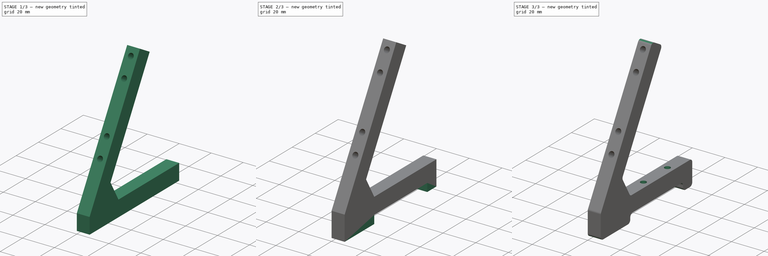
[diagram: build sequence overview — one tinted view per stage of 3, left to right]
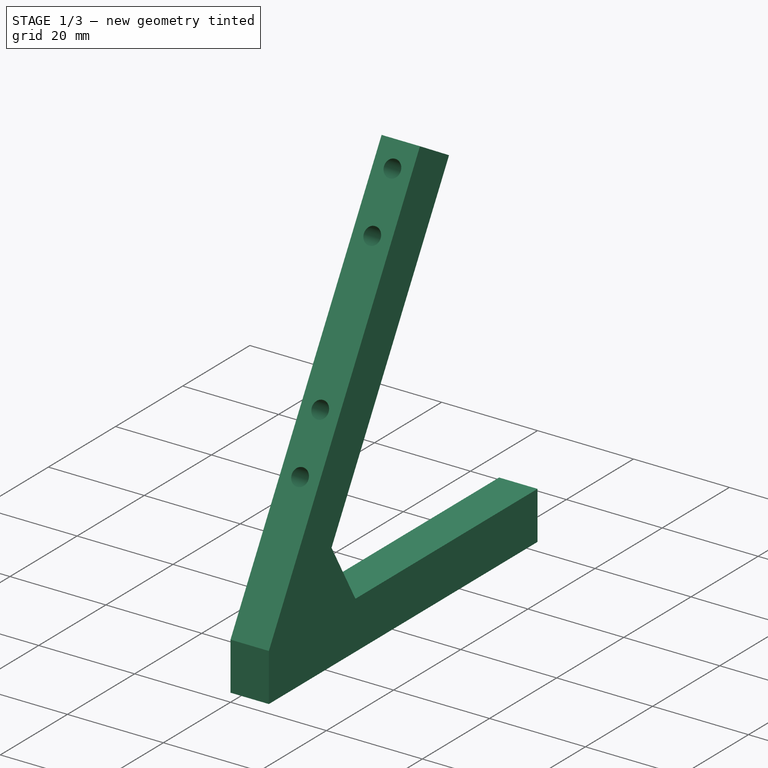
[diagram: stage 1 of 3 — iso view after this stage's code; geometry added in this stage tinted green]
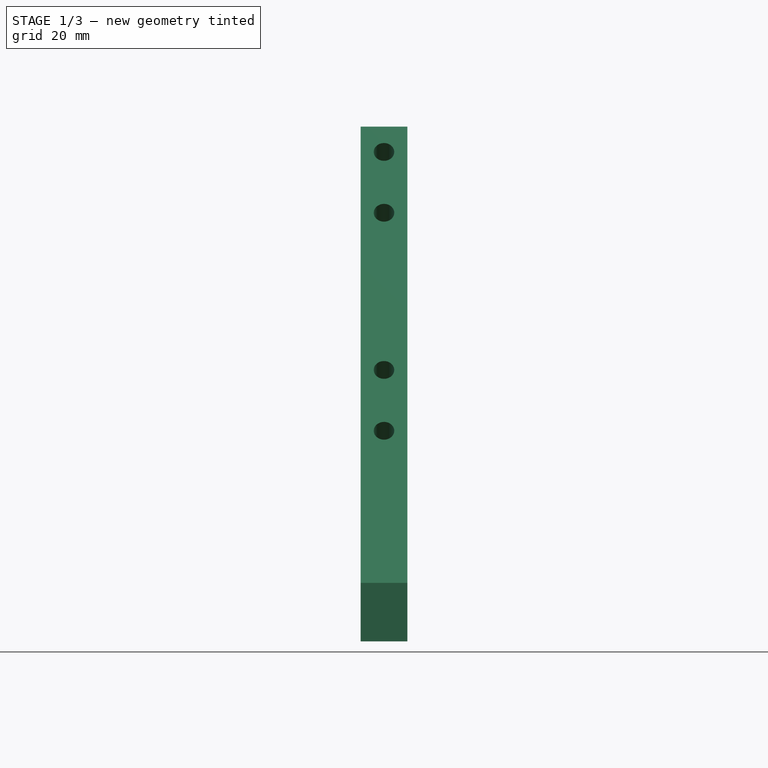
[diagram: stage 1 of 3 — front view after this stage's code; geometry added in this stage tinted green]
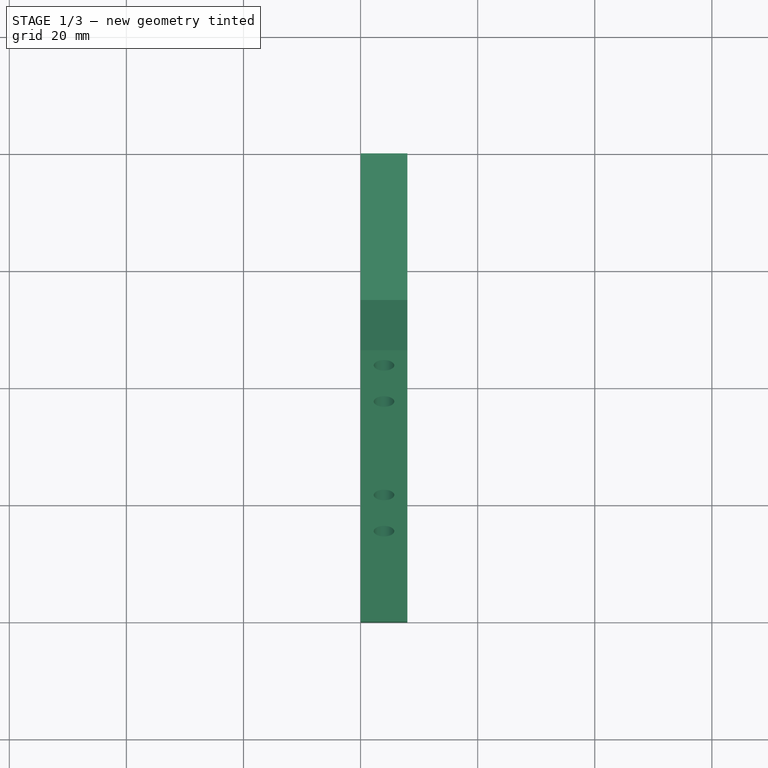
[diagram: stage 1 of 3 — top view after this stage's code; geometry added in this stage tinted green]
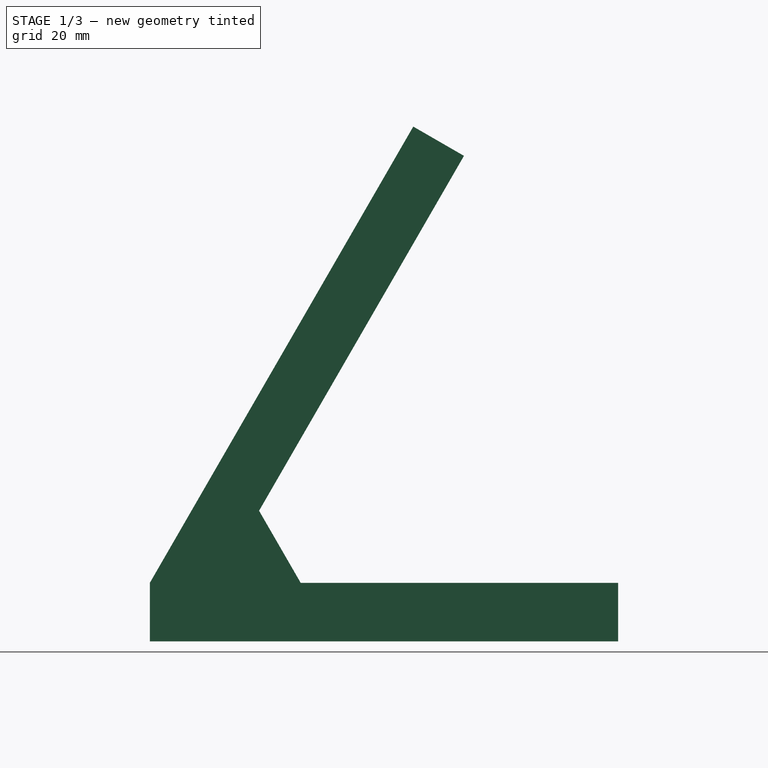
[diagram: stage 1 of 3 — right view after this stage's code; geometry added in this stage tinted green]
FCSTD DOCUMENT  (FreeCAD 1.0R39109 (Git))
Label: LEG_I2C-CLCD_NODEMCU
License: All rights reserved
LicenseURL: https://en.wikipedia.org/wiki/All_rights_reserved
objects: Sketcher::SketchObject×4, PartDesign::Pad×2, PartDesign::Pocket×2, PartDesign::Fillet×1, PartDesign::Body×1
note: 24 computed .brp shape members not serialized (recipe doc carries the construction recipe); baked Part::Feature solids carry a one-line shape summary decoded from their .brp

FEATURE [Sketcher::SketchObject] Sketch  label="sketch_leg_body"
  ArcFitTolerance = 1e-06
  AttachmentSupport = -> [YZ_Plane]
  FullyConstrained = true
  MakeInternals = false
  MapMode = 5
  Placement = pos=(0,0,0) rot=(0.57735,0.57735,0.57735;2.0944rad)
  sketch-geometry (9):
    g0: LineSegment StartX=0 StartY=0 StartZ=0 EndX=80 EndY=0 EndZ=0
    g1: LineSegment StartX=0 StartY=0 StartZ=0 EndX=0 EndY=10 EndZ=0
    g2: LineSegment StartX=0 StartY=10 StartZ=0 EndX=45 EndY=87.9423 EndZ=0
    g3: LineSegment StartX=80 StartY=0 StartZ=0 EndX=80 EndY=10 EndZ=0
    g4: LineSegment StartX=45 StartY=87.9423 StartZ=0 EndX=53.6602 EndY=82.9423 EndZ=0
    g5: LineSegment [constr] StartX=0 StartY=10 StartZ=0 EndX=80 EndY=10 EndZ=0
    g6: LineSegment StartX=53.6602 StartY=82.9423 StartZ=0 EndX=18.6602 EndY=22.3205 EndZ=0
    g7: LineSegment StartX=18.6602 StartY=22.3205 StartZ=0 EndX=25.7735 EndY=10 EndZ=0
    g8: LineSegment StartX=25.7735 StartY=10 StartZ=0 EndX=80 EndY=10 EndZ=0
  constraints (27):
    c: Distance(g0) = 80
    c: Coincident(g0,g-1)
    c: PointOnObject(g0,g-1)
    c: Distance(g1) = 10
    c: Coincident(g1,g0)
    c: PointOnObject(g1,g-2)
    c: Angle(g-1,g2) = 1.0472
    c: Distance(g3) = 10
    c: Coincident(g3,g0)
    c: Vertical(g3)
    c: Coincident(g2,g1)
    c: Distance(g2,g2) = 90
    c: Coincident(g4,g2)
    c: Angle(g2,g4) = 1.5708
    c: Distance(g4,g4) = 10
    c: Coincident(g5,g1)
    c: Coincident(g5,g3)
    c: Coincident(g6,g4)
    c: Angle(g4,g6) = 1.5708
    c: Distance(g6,g6) = 70
    c: Coincident(g7,g6)
    c: PointOnObject(g7,g5)
    c: Angle(g7,g5) = 1.0472
    c: Coincident(g8,g7)
    c: Coincident(g8,g3)
    c: DistanceX(g8,g8) = 54.2265
    c: Distance(g7,g1) = 25.7735
FEATURE [PartDesign::Pad] Pad  label="leg_body"
  Direction = (1,0,0)
  Length = 8
  Length2 = 10
  Placement = pos=(0,0,0) rot=(1,1,1;2.0944rad)
  Profile = -> Sketch
  ReferenceAxis = -> Sketch [N_Axis]
  Refine = true
  Suppressed = false
  Type = 0
FEATURE [Sketcher::SketchObject] Sketch001  label="sketch_hole_clcd"
  ArcFitTolerance = 1e-06
  AttachmentSupport = -> [Pad]
  FullyConstrained = true
  MakeInternals = false
  MapMode = 5
  Placement = pos=(-1.2e-15,-4.33012,2.5) rot=(0.447214,0.447214,-0.774597;1.82348rad)
  sketch-geometry (11):
    g0: LineSegment [constr] StartX=-8.66 StartY=8 StartZ=0 EndX=-98.66 EndY=8 EndZ=0
    g1: LineSegment [constr] StartX=-98.66 StartY=8 StartZ=0 EndX=-98.66 EndY=0 EndZ=0
    g2: LineSegment [constr] StartX=-98.66 StartY=0 StartZ=0 EndX=-8.66 EndY=0 EndZ=0
    g3: LineSegment [constr] StartX=-8.66 StartY=0 StartZ=0 EndX=-8.66 EndY=8 EndZ=0
    g4: LineSegment [constr] StartX=-93.66 StartY=8 StartZ=0 EndX=-93.66 EndY=0 EndZ=0
    g5: LineSegment [constr] StartX=-98.66 StartY=4 StartZ=0 EndX=-93.66 EndY=4 EndZ=0
    g6: LineSegment [constr] StartX=-93.66 StartY=4 StartZ=0 EndX=-38.66 EndY=4 EndZ=0
    g7: Circle CenterX=-93.66 CenterY=4 CenterZ=0 NormalX=0 NormalY=0 NormalZ=1 AngleXU=0 Radius=1.75
    g8: Circle CenterX=-38.66 CenterY=4 CenterZ=0 NormalX=0 NormalY=0 NormalZ=1 AngleXU=0 Radius=1.75
    g9: Circle CenterX=-81.66 CenterY=4 CenterZ=0 NormalX=0 NormalY=0 NormalZ=1 AngleXU=0 Radius=1.75
    g10: Circle CenterX=-50.66 CenterY=4 CenterZ=0 NormalX=0 NormalY=0 NormalZ=1 AngleXU=0 Radius=1.75
  constraints (32):
    c: Coincident(g0,g1)
    c: Coincident(g1,g2)
    c: Coincident(g2,g3)
    c: Coincident(g3,g0)
    c: Horizontal(g0)
    c: Horizontal(g2)
    c: Vertical(g1)
    c: Vertical(g3)
    c: Distance(g1,g3) = 90
    c: Distance(g0,g2) = 8
    c: PointOnObject(g1,g-1)
    c: DistanceX(g2,g-1) = 8.66
    c: Distance(g4) = 8
    c: Vertical(g4)
    c: PointOnObject(g4,g0)
    c: Distance(g4,g1) = 5
    c: Symmetric(g1,g1,g5)
    c: PointOnObject(g5,g4)
    c: Horizontal(g5)
    c: Distance(g6) = 55
    c: Coincident(g6,g5)
    c: Horizontal(g6)
    c: Diameter(g7) = 3.5
    c: Coincident(g7,g5)
    c: Diameter(g8) = 3.5
    c: Coincident(g8,g6)
    c: Diameter(g9) = 3.5
    c: PointOnObject(g9,g6)
    c: Diameter(g10) = 3.5
    c: PointOnObject(g10,g6)
    c: DistanceX(g9,g10) = 31
    c: DistanceX(g5,g9) = 12
FEATURE [PartDesign::Pocket] Pocket  label="hole_clcd"
  BaseFeature = -> Pad
  Direction = (0,0.866026,-0.5)
  Length = 10
  Length2 = 5
  Placement = pos=(0,0,0) rot=(1,1,1;2.0944rad)
  Profile = -> Sketch001
  ReferenceAxis = -> Sketch001 [N_Axis]
  Refine = true
  Suppressed = false
  Type = 0
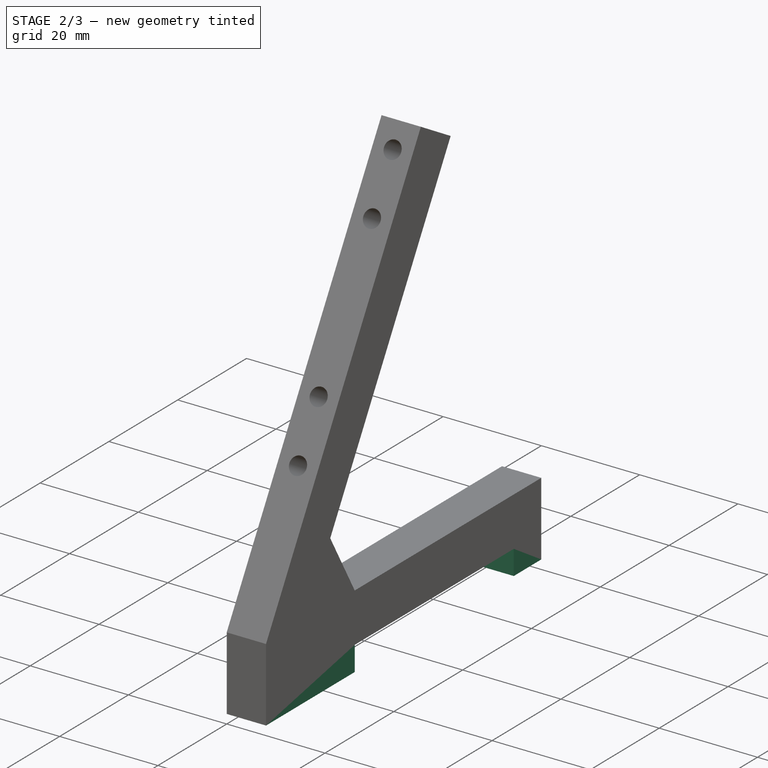
[diagram: stage 2 of 3 — iso view after this stage's code; geometry added in this stage tinted green]
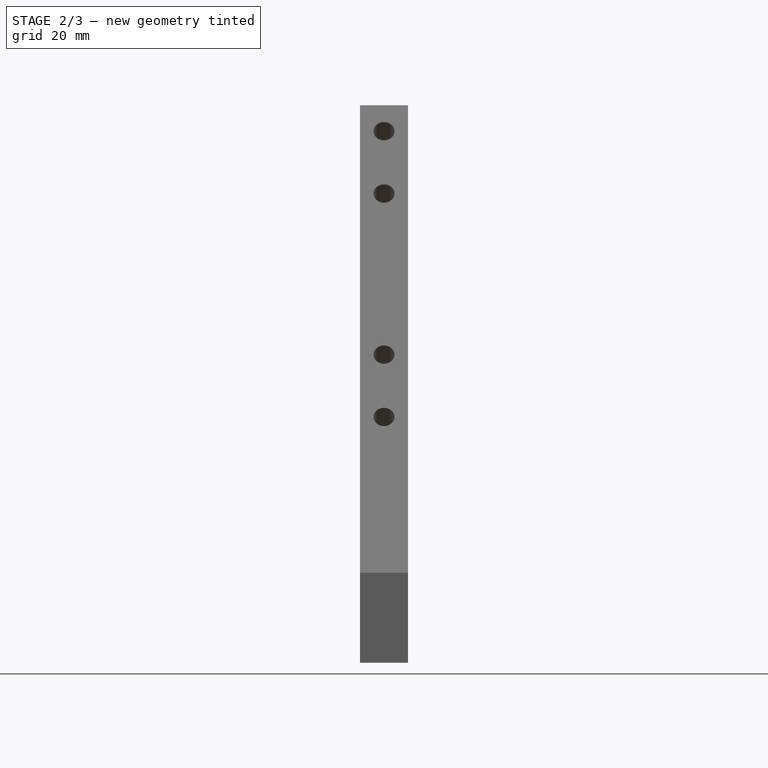
[diagram: stage 2 of 3 — front view after this stage's code; geometry added in this stage tinted green]
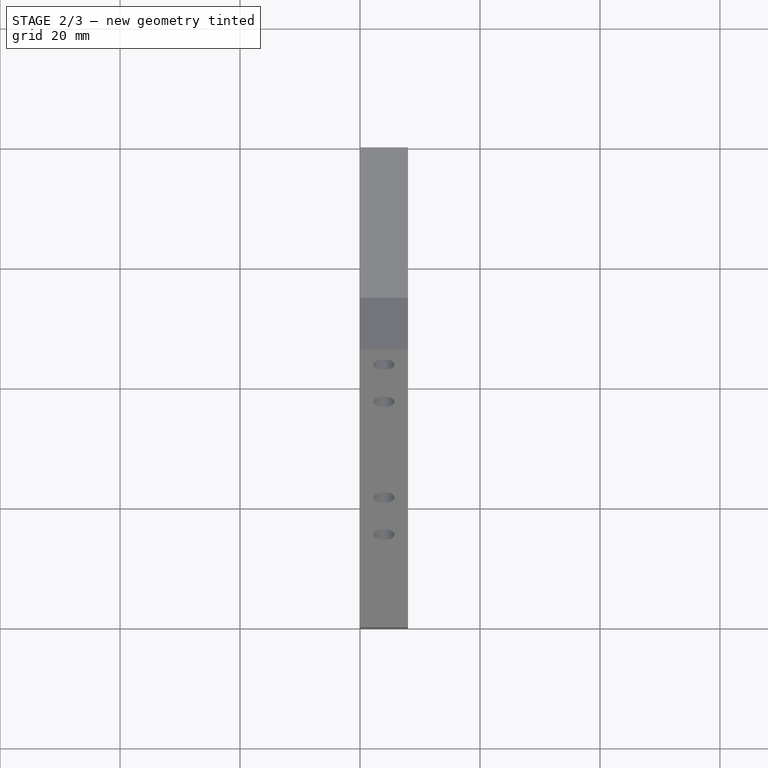
[diagram: stage 2 of 3 — top view after this stage's code; geometry added in this stage tinted green]
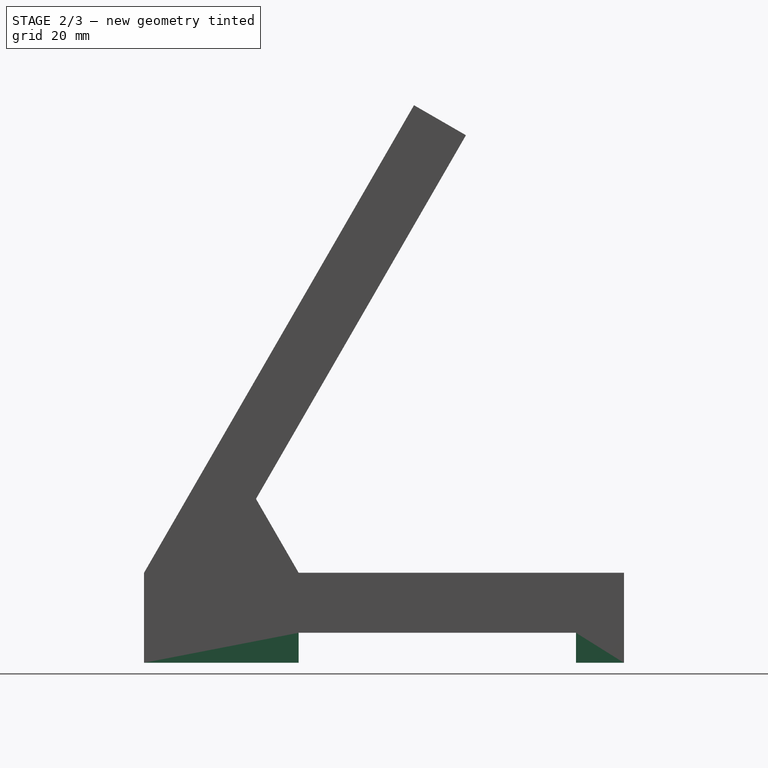
[diagram: stage 2 of 3 — right view after this stage's code; geometry added in this stage tinted green]
FEATURE [Sketcher::SketchObject] Sketch002  label="sketch_foot"
  ArcFitTolerance = 1e-06
  AttachmentSupport = -> [Pocket]
  FullyConstrained = true
  MakeInternals = false
  MapMode = 5
  Placement = pos=(0,0,0) rot=(0.707107,0.707107,0;3.14159rad)
  sketch-geometry (9):
    g0: LineSegment StartX=0 StartY=0 StartZ=0 EndX=25.7735 EndY=0 EndZ=0
    g1: LineSegment StartX=25.7735 StartY=0 StartZ=0 EndX=25.7735 EndY=8 EndZ=0
    g2: LineSegment StartX=25.7735 StartY=8 StartZ=0 EndX=0 EndY=8 EndZ=0
    g3: LineSegment StartX=0 StartY=8 StartZ=0 EndX=0 EndY=0 EndZ=0
    g4: LineSegment StartX=80 StartY=8 StartZ=0 EndX=72 EndY=8 EndZ=0
    g5: LineSegment StartX=72 StartY=8 StartZ=0 EndX=72 EndY=0 EndZ=0
    g6: LineSegment StartX=72 StartY=0 StartZ=0 EndX=80 EndY=0 EndZ=0
    g7: LineSegment StartX=80 StartY=0 StartZ=0 EndX=80 EndY=8 EndZ=0
    g8: LineSegment [constr] StartX=0 StartY=0 StartZ=0 EndX=80 EndY=0 EndZ=0
  constraints (25):
    c: Coincident(g0,g1)
    c: Coincident(g1,g2)
    c: Coincident(g2,g3)
    c: Coincident(g3,g0)
    c: Horizontal(g0)
    c: Horizontal(g2)
    c: Vertical(g1)
    c: Vertical(g3)
    c: Distance(g1,g3) = 25.7735
    c: Distance(g0,g2) = 8
    c: Coincident(g0,g-1)
    c: Coincident(g4,g5)
    c: Coincident(g5,g6)
    c: Coincident(g6,g7)
    c: Coincident(g7,g4)
    c: Horizontal(g4)
    c: Horizontal(g6)
    c: Vertical(g5)
    c: Vertical(g7)
    c: Distance(g5,g7) = 8
    c: Distance(g4,g6) = 8
    c: Distance(g8) = 80
    c: Coincident(g8,g0)
    c: PointOnObject(g8,g-1)
    c: Coincident(g6,g8)
FEATURE [PartDesign::Pad] Pad001  label="foot_body"
  BaseFeature = -> Pocket
  Direction = (0,0,-1)
  Length = 5
  Length2 = 10
  Placement = pos=(0,0,0) rot=(1,1,1;2.0944rad)
  Profile = -> Sketch002
  ReferenceAxis = -> Sketch002 [N_Axis]
  Refine = true
  Suppressed = false
  Type = 0
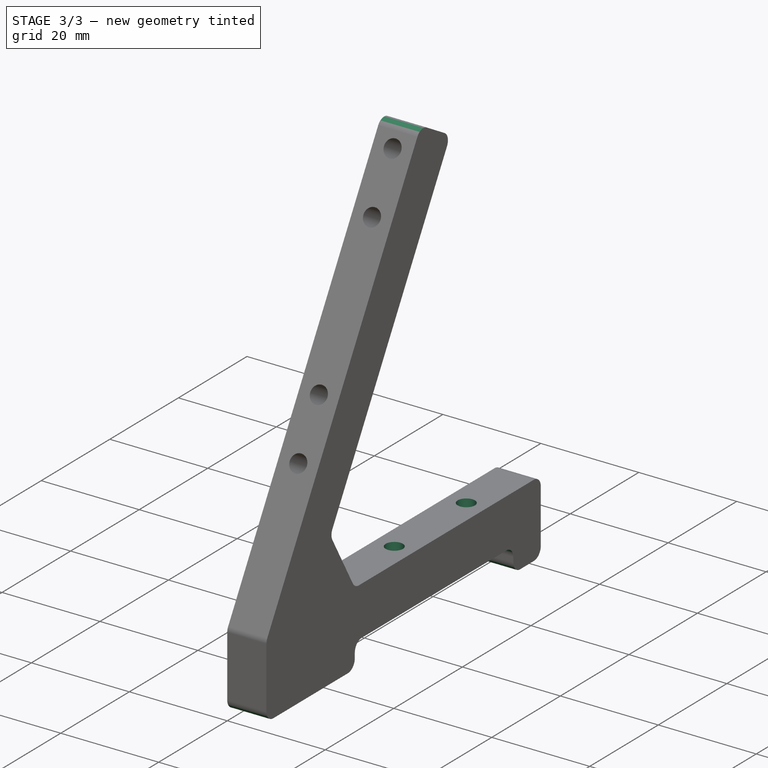
[diagram: stage 3 of 3 — iso view after this stage's code; geometry added in this stage tinted green]
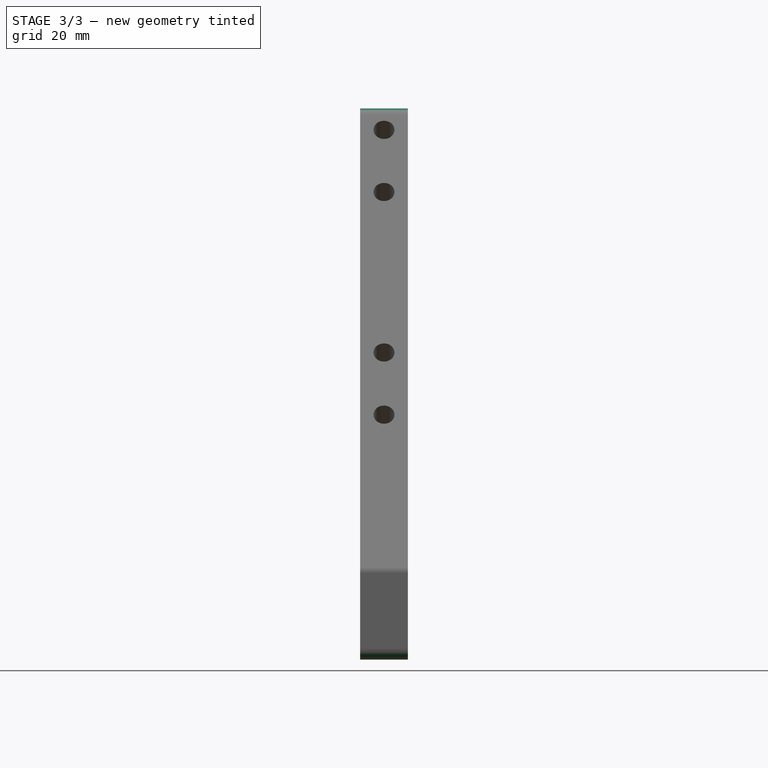
[diagram: stage 3 of 3 — front view after this stage's code; geometry added in this stage tinted green]
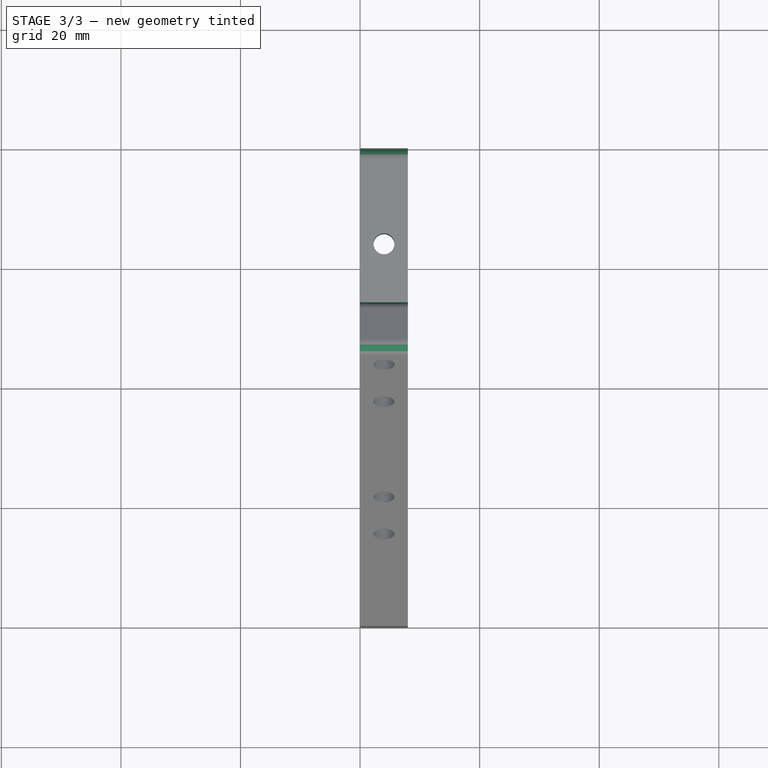
[diagram: stage 3 of 3 — top view after this stage's code; geometry added in this stage tinted green]
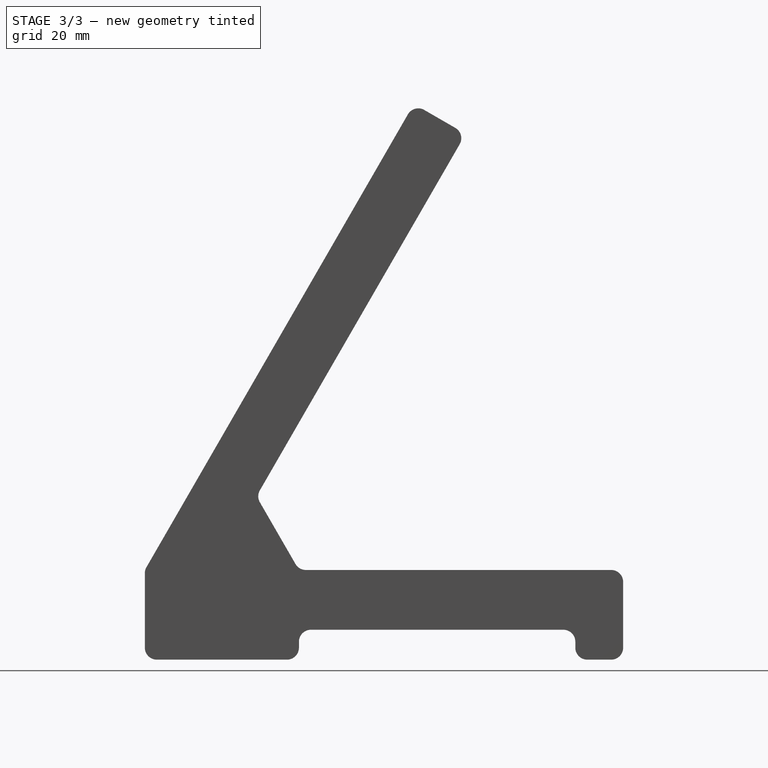
[diagram: stage 3 of 3 — right view after this stage's code; geometry added in this stage tinted green]
FEATURE [Sketcher::SketchObject] Sketch003  label="Sketch_hole_nodemcu"
  ArcFitTolerance = 1e-06
  AttachmentSupport = -> [Pad001]
  FullyConstrained = true
  MakeInternals = false
  MapMode = 5
  Placement = pos=(0,0,0) rot=(0.707107,0.707107,0;3.14159rad)
  sketch-geometry (4):
    g0: LineSegment [constr] StartX=64 StartY=0 StartZ=0 EndX=64 EndY=8 EndZ=0
    g1: LineSegment [constr] StartX=64 StartY=4 StartZ=0 EndX=0 EndY=4 EndZ=0
    g2: Circle CenterX=64 CenterY=4 CenterZ=0 NormalX=0 NormalY=0 NormalZ=1 AngleXU=0 Radius=1.75
    g3: Circle CenterX=43 CenterY=4 CenterZ=0 NormalX=0 NormalY=0 NormalZ=1 AngleXU=0 Radius=1.75
  constraints (12):
    c: Distance(g0) = 8
    c: Vertical(g0)
    c: PointOnObject(g0,g-1)
    c: DistanceX(g-1,g0) = 64
    c: Symmetric(g0,g0,g1)
    c: PointOnObject(g1,g-2)
    c: Horizontal(g1)
    c: Diameter(g2) = 3.5
    c: Coincident(g2,g1)
    c: Diameter(g3) = 3.5
    c: PointOnObject(g3,g1)
    c: DistanceX(g3,g1) = 21
FEATURE [PartDesign::Pocket] Pocket001  label="hole_nodemcu"
  BaseFeature = -> Pad001
  Direction = (0,0,1)
  Length = 10
  Length2 = 5
  Placement = pos=(0,0,0) rot=(1,1,1;2.0944rad)
  Profile = -> Sketch003
  ReferenceAxis = -> Sketch003 [N_Axis]
  Refine = true
  Suppressed = false
  Type = 0
FEATURE [PartDesign::Fillet] Fillet  label="final"
  Base = -> Pocket001 [Edge37,Edge36,Edge35,Edge42,Edge43,Edge48,Edge49,Edge50,Edge21,Edge3,Edge2,Edge19]
  BaseFeature = -> Pocket001
  Placement = pos=(0,0,0) rot=(1,1,1;2.0944rad)
  Radius = 2
  Refine = true
  SupportTransform = false
  Suppressed = false
  UseAllEdges = false
FEATURE [PartDesign::Body] Body  label="몸통"
  AllowCompound = false
  Group = -> [Sketch,Pad,Sketch001,Pocket,Sketch002,Pad001,Sketch003,Pocket001,Fillet]
  Origin = -> Origin
  Tip = -> Fillet
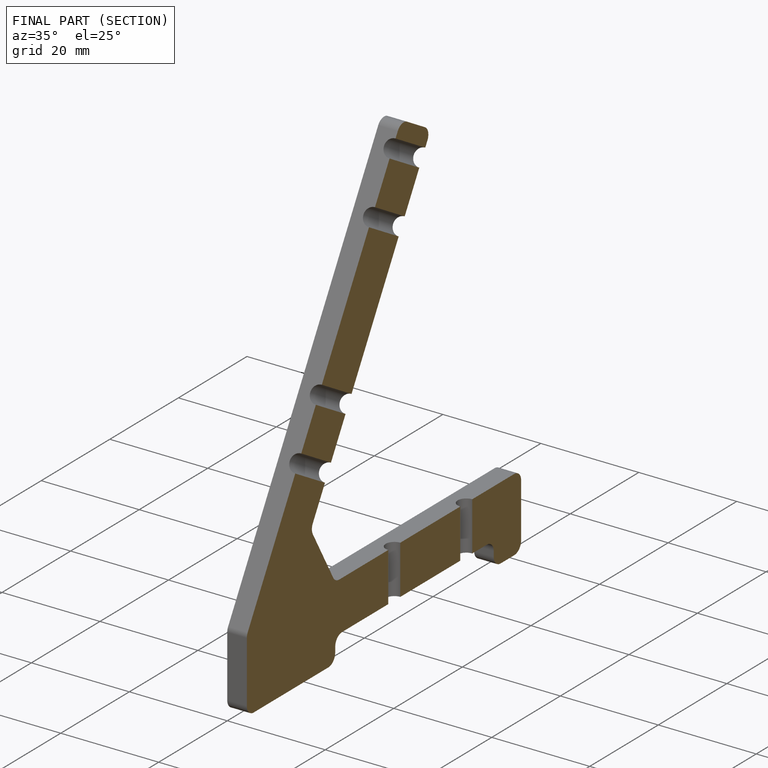
[diagram: finished part — half-section view (interior)]
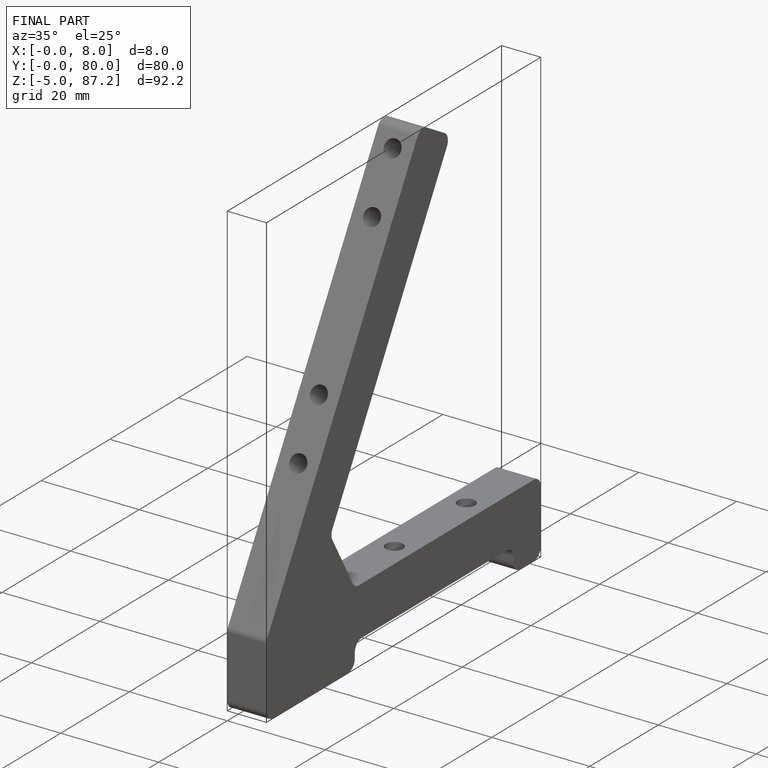
[diagram: finished part — iso view with bounding-box wireframe]
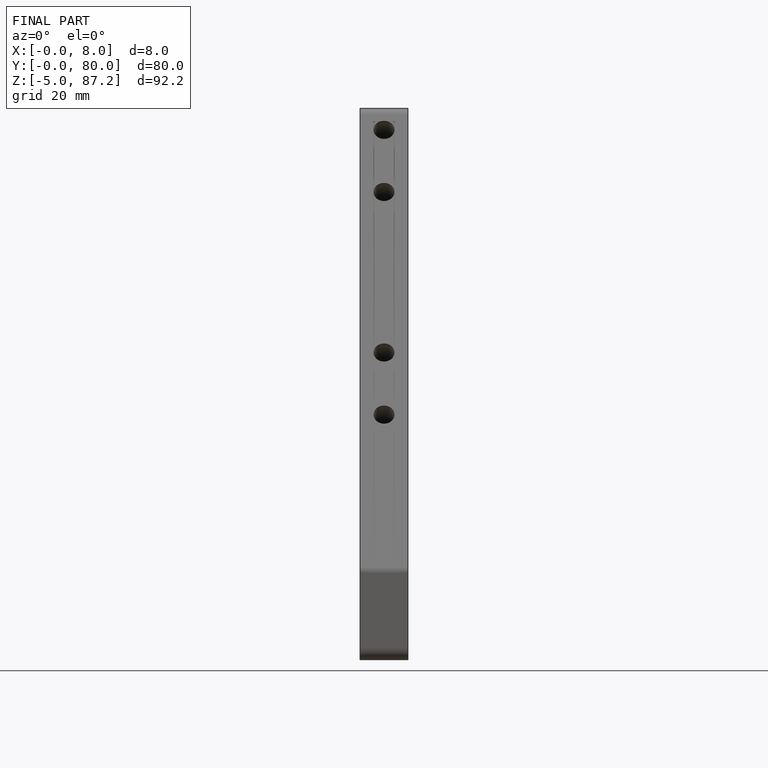
[diagram: finished part — front view with bounding-box wireframe]
